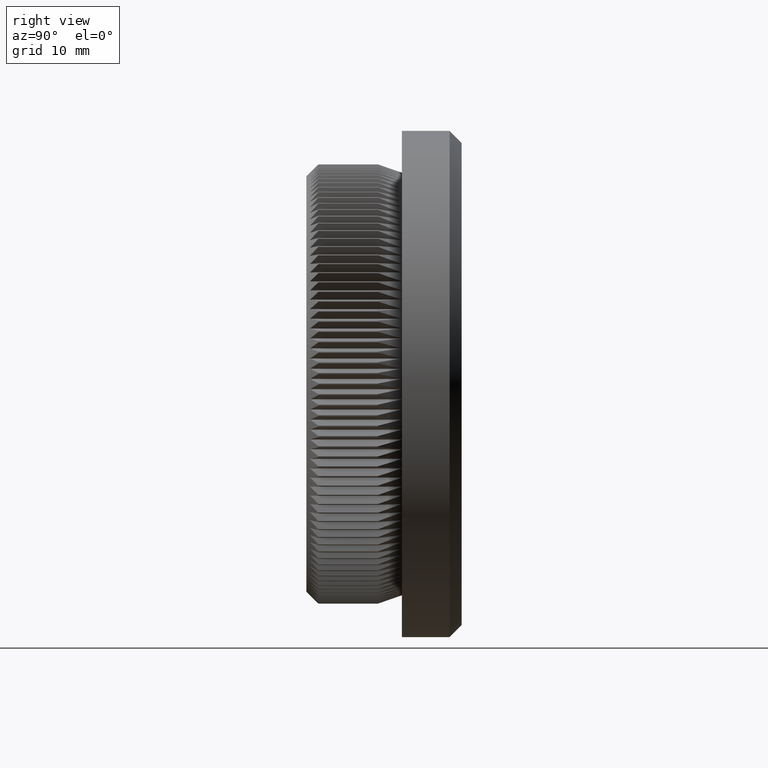
[diagram: clean part render]
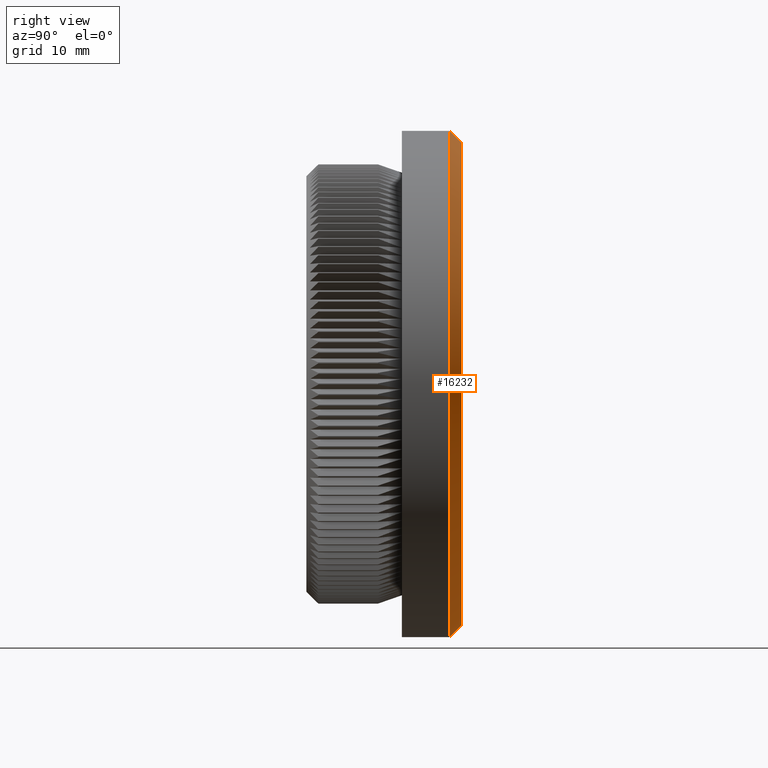
[diagram: same view with one face highlighted and labeled with its STEP entity id]
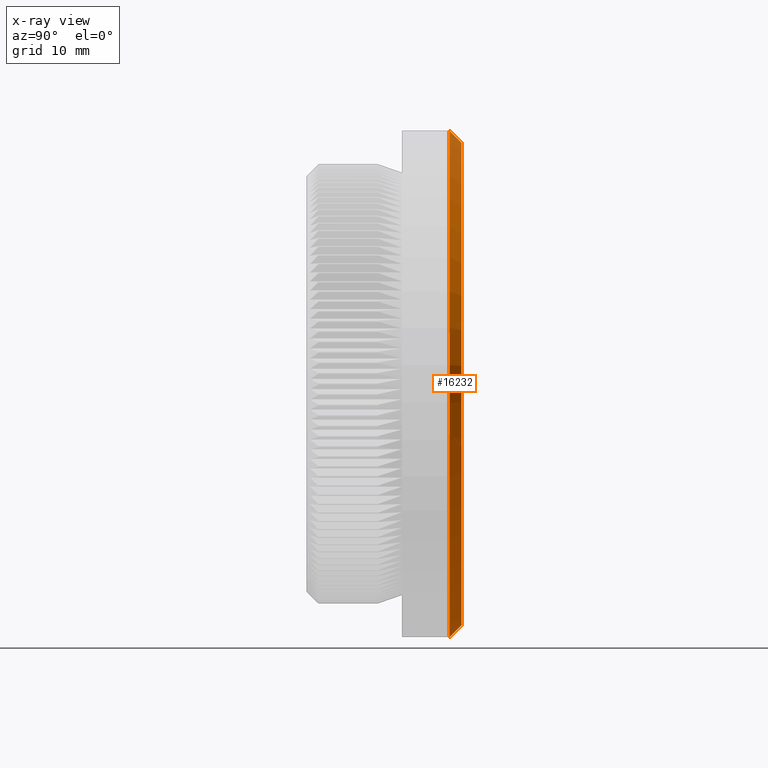
[diagram: x-ray of the same camera — body ghosted, the highlighted face saturated]
A machine part, right view. The second image highlights one B-rep face of the part: STEP entity #16232.
The next image is the same camera in x-ray: the body ghosted, the highlighted face saturated — about 0% of this face is hidden behind the body in this view.
In plain terms, the highlighted conical surface has half-angle 45 deg.
Its self-contained STEP definition (entity closure, byte-faithful):
#723 = EDGE_CURVE ( 'NONE', #11839, #25640, #17150, .T. ) ;
#3353 = DIRECTION ( 'NONE',  ( 0.0000000000000000000, 0.0000000000000000000, 1.000000000000000000 ) ) ;
#4999 = DIRECTION ( 'NONE',  ( 0.0000000000000000000, 0.0000000000000000000, -1.000000000000000000 ) ) ;
#5743 = EDGE_LOOP ( 'NONE', ( #22506, #12293, #6467, #5816 ) ) ;
#5756 = EDGE_CURVE ( 'NONE', #27188, #6029, #23028, .T. ) ;
#5816 = ORIENTED_EDGE ( 'NONE', *, *, #7253, .F. ) ;
#6029 = VERTEX_POINT ( 'NONE', #26872 ) ;
#6467 = ORIENTED_EDGE ( 'NONE', *, *, #5756, .F. ) ;
#6844 = DIRECTION ( 'NONE',  ( 0.0000000000000000000, 0.0000000000000000000, 1.000000000000000000 ) ) ;
#7253 = EDGE_CURVE ( 'NONE', #25640, #27188, #15077, .T. ) ;
#8381 = VECTOR ( 'NONE', #30784, 1000.000000000000100 ) ;
#8547 = DIRECTION ( 'NONE',  ( 8.659560562354962400E-017, -0.7071067811865451300, 0.7071067811865500200 ) ) ;
#10563 = CARTESIAN_POINT ( 'NONE',  ( 0.0000000000000000000, 11.99999999999999800, -21.19999999999999900 ) ) ;
#10979 = DIRECTION ( 'NONE',  ( -0.0000000000000000000, -1.000000000000000000, -0.0000000000000000000 ) ) ;
#11003 = EDGE_CURVE ( 'NONE', #11839, #6029, #28349, .T. ) ;
#11839 = VERTEX_POINT ( 'NONE', #27694 ) ;
#12230 = CARTESIAN_POINT ( 'NONE',  ( 0.0000000000000000000, 13.00000000000000000, 0.0000000000000000000 ) ) ;
#12293 = ORIENTED_EDGE ( 'NONE', *, *, #11003, .T. ) ;
#12730 = CARTESIAN_POINT ( 'NONE',  ( 0.0000000000000000000, 11.99999999999999800, -21.19999999999999900 ) ) ;
#13200 = AXIS2_PLACEMENT_3D ( 'NONE', #12230, #27077, #6844 ) ;
#15077 = LINE ( 'NONE', #10563, #8381 ) ;
#16232 = ADVANCED_FACE ( 'NONE', ( #24207 ), #17537, .T. ) ;
#17150 = CIRCLE ( 'NONE', #13200, 20.19999999999999200 ) ;
#17427 = CARTESIAN_POINT ( 'NONE',  ( 0.0000000000000000000, 11.99999999999999800, 0.0000000000000000000 ) ) ;
#17537 = CONICAL_SURFACE ( 'NONE', #19763, 21.19999999999999900, 0.7853981633974517200 ) ;
#18370 = CARTESIAN_POINT ( 'NONE',  ( 0.0000000000000000000, 13.00000000000000000, -20.19999999999999200 ) ) ;
#18538 = CARTESIAN_POINT ( 'NONE',  ( 0.0000000000000000000, 11.99999999999999800, 0.0000000000000000000 ) ) ;
#19763 = AXIS2_PLACEMENT_3D ( 'NONE', #17427, #27970, #4999 ) ;
#20098 = VECTOR ( 'NONE', #8547, 1000.000000000000100 ) ;
#21063 = CARTESIAN_POINT ( 'NONE',  ( 2.596251214192388800E-015, 11.99999999999999800, 21.19999999999999900 ) ) ;
#22506 = ORIENTED_EDGE ( 'NONE', *, *, #723, .F. ) ;
#23028 = CIRCLE ( 'NONE', #24864, 21.19999999999999900 ) ;
#24207 = FACE_OUTER_BOUND ( 'NONE', #5743, .T. ) ;
#24864 = AXIS2_PLACEMENT_3D ( 'NONE', #18538, #10979, #3353 ) ;
#25640 = VERTEX_POINT ( 'NONE', #18370 ) ;
#26872 = CARTESIAN_POINT ( 'NONE',  ( 2.596251214192388800E-015, 11.99999999999999800, 21.19999999999999900 ) ) ;
#27077 = DIRECTION ( 'NONE',  ( 0.0000000000000000000, 1.000000000000000000, 0.0000000000000000000 ) ) ;
#27188 = VERTEX_POINT ( 'NONE', #12730 ) ;
#27694 = CARTESIAN_POINT ( 'NONE',  ( 2.535018874235020400E-015, 13.00000000000000000, 20.19999999999999200 ) ) ;
#27970 = DIRECTION ( 'NONE',  ( -0.0000000000000000000, -1.000000000000000000, -0.0000000000000000000 ) ) ;
#28349 = LINE ( 'NONE', #21063, #20098 ) ;
#30784 = DIRECTION ( 'NONE',  ( 0.0000000000000000000, -0.7071067811865451300, -0.7071067811865500200 ) ) ;